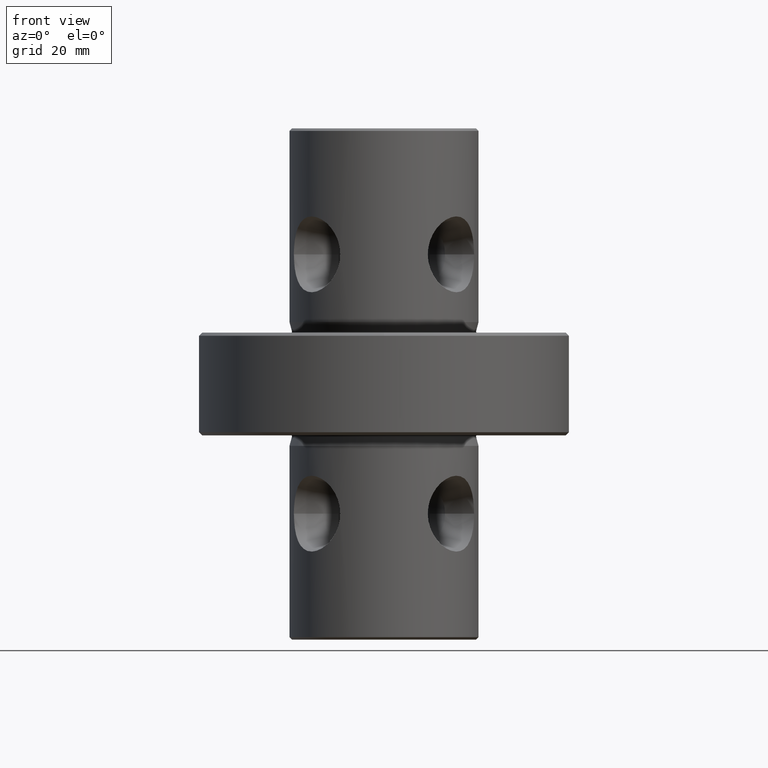
[diagram: clean part render]
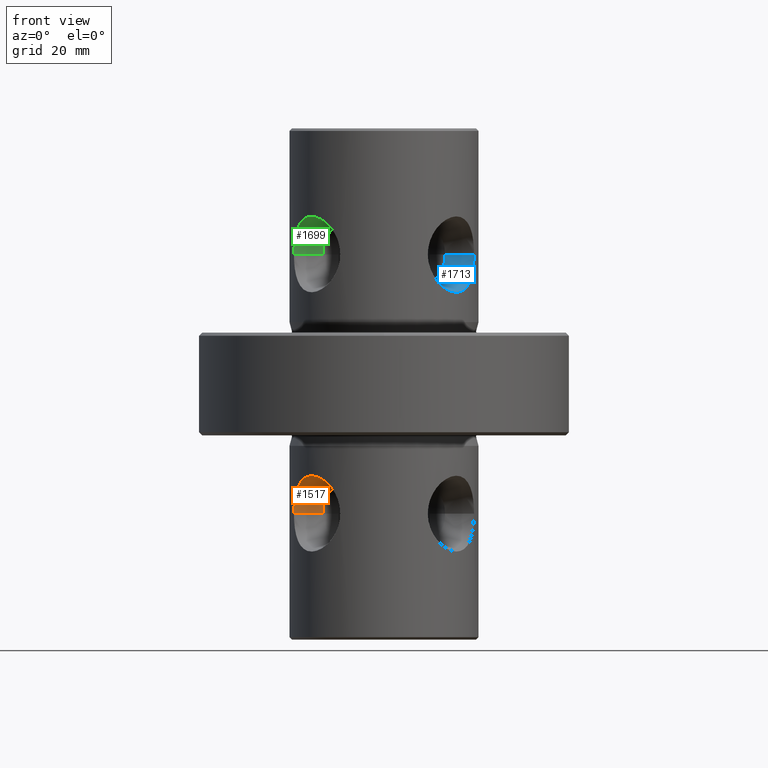
[diagram: same view with three faces highlighted in distinct colors, each labeled with its STEP entity id]
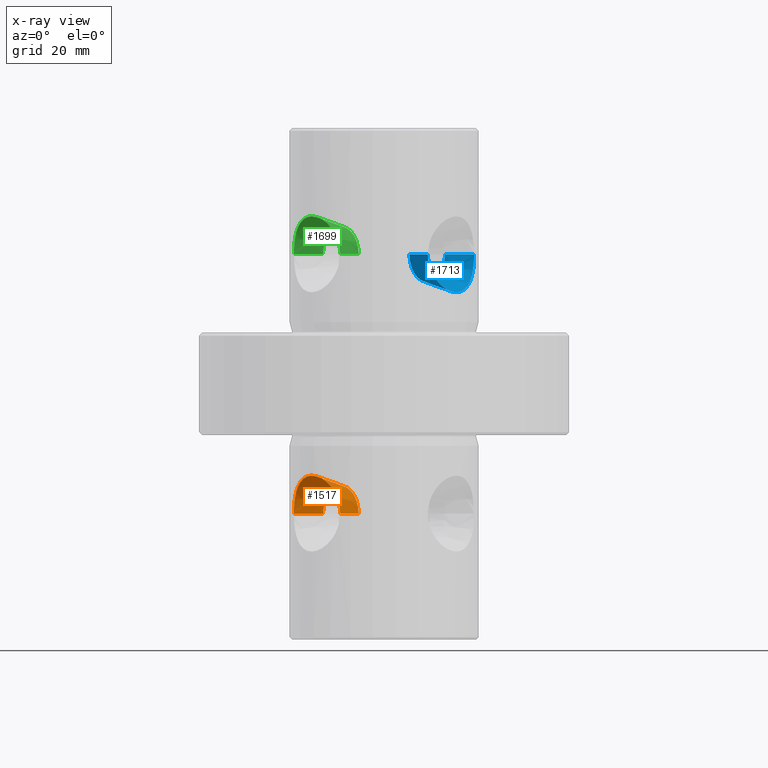
[diagram: x-ray of the same camera — body ghosted, the three highlighted faces saturated]
A machine part, front view with three faces highlighted in distinct colors.
The next image is the same camera in x-ray (body ghosted, the three faces saturated) — at least one of them is partly hidden behind the body in this view.
Their STEP definitions:

[orange] entity #1517 — the highlighted conical surface has half-angle 15 deg.
#1517=ADVANCED_FACE('NONE',(#3910),#3911,.F.);
#1829=VERTEX_POINT('NONE',#4246);
#2105=EDGE_CURVE('NONE',#2397,#1829,#4549,.T.);
#2397=VERTEX_POINT('NONE',#4881);
#2521=VERTEX_POINT('NONE',#5013);
#2657=EDGE_CURVE('NONE',#2521,#3419,#5161,.T.);
#2741=EDGE_CURVE('NONE',#2397,#2521,#5257,.T.);
#3265=EDGE_CURVE('NONE',#3419,#1829,#5851,.T.);
#3419=VERTEX_POINT('NONE',#6022);
#3910=FACE_OUTER_BOUND('',#7745,.T.);
#3911=CONICAL_SURFACE('',#7746,6.75,0.26179938779915);
#4246=CARTESIAN_POINT('',(-21.9248945438115,-6.94974814239657,-93.75));
#4549=LINE('',#10525,#10526);
#4881=CARTESIAN_POINT('',(-14.8541318378612,-3.65259734361518,-93.75));
#5013=CARTESIAN_POINT('',(-6.17649910709292,-13.9941973257214,-93.75));
#5161=LINE('',#12530,#12531);
#5257=CIRCLE('',#13072,6.75);
#5851=B_SPLINE_CURVE_WITH_KNOTS('',3,(#14894,#14895,#14896,#14897,#14898,#14899,#14900,#14901,#14902,#14903,#14904,#14905,#14906,#14907,#14908,#14909,#14910,#14911,#14912,#14913,#14914,#14915,#14916,#14917,#14918,#14919,#14920,#14921,#14922,#14923,#14924,#14925,#14926,#14927,#14928,#14929,#14930,#14931,#14932,#14933,#14934,#14935,#14936,#14937,#14938,#14939,#14940),.UNSPECIFIED.,.F.,.F.,(4,2,2,2,2,2,2,2,2,2,2,1,2,2,2,2,2,2,2,2,2,2,2,4),(0.0440413282775524,0.0458177088277653,0.0467058991028718,0.0475940893779783,0.0493704699281913,0.0511468504784042,0.0529232310286172,0.0538114213037237,0.0546996115788302,0.0564759921290432,0.0573641824041497,0.0582523726792562,0.0591405629543627,0.0600287532294692,0.0618051337796821,0.0626933240547886,0.0635815143298951,0.0644697046050016,0.0653578948801081,0.0671342754303211,0.068910655980534,0.070687036530747,0.0715752268058535,0.07246341708096),.UNSPECIFIED.);
#6022=CARTESIAN_POINT('',(-10.6513838351868,-20.3849950305494,-93.75));
#7745=EDGE_LOOP('',(#16107,#16108,#16109,#16110));
#7746=AXIS2_PLACEMENT_3D('',#16111,#16112,#16113);
#10525=CARTESIAN_POINT('',(-14.8541318378612,-3.65259734361518,-93.75));
#10526=VECTOR('',#16579,1000.0);
#12530=CARTESIAN_POINT('',(-6.17649910709292,-13.9941973257214,-93.75));
#12531=VECTOR('',#17163,1000.0);
#13072=AXIS2_PLACEMENT_3D('',#17258,#17259,#17260);
#14894=CARTESIAN_POINT('',(-10.6513838351868,-20.3849950305494,-93.75));
#14895=CARTESIAN_POINT('',(-10.6513838351868,-20.3849950305494,-93.1501892659733));
#14896=CARTESIAN_POINT('',(-10.7043967337572,-20.3575382698098,-92.5584162587969));
#14897=CARTESIAN_POINT('',(-10.8580951153181,-20.2757278273017,-91.687661042613));
#14898=CARTESIAN_POINT('',(-10.9217515420961,-20.2416113327971,-91.3999292932252));
#14899=CARTESIAN_POINT('',(-11.0737315129261,-20.1588679363432,-90.8295463512898));
#14900=CARTESIAN_POINT('',(-11.1625564338296,-20.1099542104055,-90.5457851760545));
#14901=CARTESIAN_POINT('',(-11.4599333705069,-19.9429592858151,-89.7189345926646));
#14902=CARTESIAN_POINT('',(-11.699971597739,-19.8044540380584,-89.1953255849322));
#14903=CARTESIAN_POINT('',(-12.2551663143087,-19.4657810976621,-88.2014016134274));
#14904=CARTESIAN_POINT('',(-12.5733242686259,-19.2634526033198,-87.7285629734536));
#14905=CARTESIAN_POINT('',(-13.2538709284699,-18.801701911684,-86.8742223020156));
#14906=CARTESIAN_POINT('',(-13.6183501600879,-18.5412293889585,-86.4877701414694));
#14907=CARTESIAN_POINT('',(-14.1971917696331,-18.0969308983719,-85.9713062122383));
#14908=CARTESIAN_POINT('',(-14.396553042897,-17.9389586514174,-85.8091556356362));
#14909=CARTESIAN_POINT('',(-14.7965601668547,-17.6104737086446,-85.5140418300655));
#14910=CARTESIAN_POINT('',(-14.9980230851255,-17.4393842210896,-85.3802043217393));
#14911=CARTESIAN_POINT('',(-15.6055719782985,-16.9043602990805,-85.0196282302583));
#14912=CARTESIAN_POINT('',(-16.0147323859784,-16.5188835173125,-84.8333266418787));
#14913=CARTESIAN_POINT('',(-16.6315893687973,-15.8895099540851,-84.6423796158903));
#14914=CARTESIAN_POINT('',(-16.8355753358596,-15.6732578551542,-84.5944542485713));
#14915=CARTESIAN_POINT('',(-17.2333323042106,-15.2348241334191,-84.5310590036821));
#14916=CARTESIAN_POINT('',(-17.6225410603829,-14.7888120222543,-84.4995163774851));
#14917=CARTESIAN_POINT('',(-17.9946336425985,-14.3276353739041,-84.5308905389506));
#14918=CARTESIAN_POINT('',(-18.3581243387173,-13.858832782853,-84.5943145653371));
#14919=CARTESIAN_POINT('',(-18.5359629340563,-13.6199404552441,-84.6424295118152));
#14920=CARTESIAN_POINT('',(-19.0440012767127,-12.9098727709062,-84.8312763944613));
#14921=CARTESIAN_POINT('',(-19.3534289267631,-12.4395353082169,-85.0164144728386));
#14922=CARTESIAN_POINT('',(-19.7791891040612,-11.7412942584154,-85.380418150297));
#14923=CARTESIAN_POINT('',(-19.9148549177896,-11.5093634716627,-85.5167128324554));
#14924=CARTESIAN_POINT('',(-20.1686353946688,-11.0586183692343,-85.8120691733595));
#14925=CARTESIAN_POINT('',(-20.2875628093397,-10.8385137609186,-85.9717267324638));
#14926=CARTESIAN_POINT('',(-20.5111659423261,-10.4091621648856,-86.3142923272696));
#14927=CARTESIAN_POINT('',(-20.6158379234354,-10.1999146834457,-86.4972022287155));
#14928=CARTESIAN_POINT('',(-20.8122071214181,-9.79301115950164,-86.8863507379254));
#14929=CARTESIAN_POINT('',(-20.9041521962665,-9.59473982110367,-87.0934397036402));
#14930=CARTESIAN_POINT('',(-21.1574186338803,-9.0296224654255,-87.7380551253011));
#14931=CARTESIAN_POINT('',(-21.2981916385491,-8.68866098376022,-88.2015600984003));
#14932=CARTESIAN_POINT('',(-21.5353738721929,-8.0829121576293,-89.1958690043566));
#14933=CARTESIAN_POINT('',(-21.631729865726,-7.81786699687364,-89.7301839121269));
#14934=CARTESIAN_POINT('',(-21.7807567882508,-7.39252427088426,-90.8256137294668));
#14935=CARTESIAN_POINT('',(-21.8348046727397,-7.22876207031578,-91.3913472839122));
#14936=CARTESIAN_POINT('',(-21.8891283224751,-7.06183300026986,-92.2682561001215));
#14937=CARTESIAN_POINT('',(-21.9026962612973,-7.01945551432055,-92.5662141073027));
#14938=CARTESIAN_POINT('',(-21.9205171619351,-6.96360442482792,-93.1585097562879));
#14939=CARTESIAN_POINT('',(-21.9248945438115,-6.94974814239657,-93.4543875867931));
#14940=CARTESIAN_POINT('',(-21.9248945438115,-6.94974814239657,-93.75));
#16107=ORIENTED_EDGE('',*,*,#2741,.T.);
#16108=ORIENTED_EDGE('',*,*,#2657,.T.);
#16109=ORIENTED_EDGE('',*,*,#3265,.T.);
#16110=ORIENTED_EDGE('',*,*,#2105,.F.);
#16111=CARTESIAN_POINT('',(-10.5153154724771,-8.82339733466828,-93.75));
#16112=DIRECTION('',(-0.766044443118977,-0.64278760968654,-0.0));
#16113=DIRECTION('',(-0.64278760968654,0.766044443118977,0.0));
#16579=DIRECTION('',(-0.906307787036649,-0.4226182617407,0.0));
#17163=DIRECTION('',(-0.573576436351044,-0.819152044288993,-3.16951447122788E-017));
#17258=CARTESIAN_POINT('',(-10.5153154724771,-8.82339733466828,-93.75));
#17259=DIRECTION('',(0.766044443118977,0.64278760968654,0.0));
#17260=DIRECTION('',(-0.64278760968654,0.766044443118977,0.0));

[blue] entity #1713 — the highlighted conical surface has half-angle 15 deg.
#1277=EDGE_CURVE('NONE',#2413,#1779,#3647,.T.);
#1649=EDGE_CURVE('NONE',#2583,#2413,#4049,.T.);
#1713=ADVANCED_FACE('NONE',(#4119),#4120,.F.);
#1779=VERTEX_POINT('NONE',#4191);
#1861=EDGE_CURVE('NONE',#2583,#2175,#4279,.T.);
#2175=VERTEX_POINT('NONE',#4622);
#2413=VERTEX_POINT('NONE',#4897);
#2583=VERTEX_POINT('NONE',#5080);
#2815=EDGE_CURVE('NONE',#2175,#1779,#5346,.T.);
#3647=LINE('',#6599,#6600);
#4049=CIRCLE('',#8267,6.75);
#4119=FACE_OUTER_BOUND('',#8647,.T.);
#4120=CONICAL_SURFACE('',#8648,6.75,0.26179938779915);
#4191=CARTESIAN_POINT('',(21.9248945438115,-6.94974814239672,-30.65));
#4279=LINE('',#9318,#9319);
#4622=CARTESIAN_POINT('',(10.6513838351866,-20.3849950305494,-30.65));
#4897=CARTESIAN_POINT('',(14.8541318378612,-3.65259734361528,-30.65));
#5080=CARTESIAN_POINT('',(6.17649910709282,-13.9941973257214,-30.65));
#5346=B_SPLINE_CURVE_WITH_KNOTS('',3,(#13305,#13306,#13307,#13308,#13309,#13310,#13311,#13312,#13313,#13314,#13315,#13316,#13317,#13318,#13319,#13320,#13321,#13322,#13323,#13324,#13325,#13326,#13327,#13328,#13329,#13330,#13331,#13332,#13333,#13334,#13335,#13336,#13337,#13338,#13339,#13340,#13341,#13342,#13343,#13344,#13345,#13346,#13347,#13348),.UNSPECIFIED.,.F.,.F.,(4,2,2,2,2,2,2,2,2,2,2,2,2,2,2,2,2,2,2,2,2,4),(0.00582249101599476,0.00758842714864576,0.00935436328129675,0.0102373313476223,0.0111202994139478,0.0128862355465988,0.0146521716792498,0.0155351397455753,0.0164181078119008,0.0181840439445518,0.0199499800772028,0.0217159162098539,0.0234818523425049,0.0252477884751559,0.0270137246078069,0.0278966926741324,0.0287796607404579,0.0296626288067834,0.0305455968731089,0.03231153300576,0.0331945010720854,0.0340774691384109),.UNSPECIFIED.);
#6599=CARTESIAN_POINT('',(14.8541318378612,-3.65259734361528,-30.65));
#6600=VECTOR('',#15889,1000.0);
#8267=AXIS2_PLACEMENT_3D('',#16185,#16186,#16187);
#8647=EDGE_LOOP('',(#16236,#16237,#16238,#16239));
#8648=AXIS2_PLACEMENT_3D('',#16240,#16241,#16242);
#9318=CARTESIAN_POINT('',(6.17649910709282,-13.9941973257214,-30.65));
#9319=VECTOR('',#16355,1000.0);
#13305=CARTESIAN_POINT('',(10.6513838351866,-20.3849950305494,-30.65));
#13306=CARTESIAN_POINT('',(10.6513838351866,-20.3849950305494,-31.2424302492194));
#13307=CARTESIAN_POINT('',(10.7046614533567,-20.3574022814185,-31.8445207323126));
#13308=CARTESIAN_POINT('',(10.9105796122972,-20.2477864716666,-33.0082341350945));
#13309=CARTESIAN_POINT('',(11.0622585022081,-20.1662583265641,-33.5746180936553));
#13310=CARTESIAN_POINT('',(11.359187512644,-19.9995435840031,-34.4012997569281));
#13311=CARTESIAN_POINT('',(11.4703123814805,-19.9361806335004,-34.6739090935432));
#13312=CARTESIAN_POINT('',(11.710701937952,-19.7959294932253,-35.20066916443));
#13313=CARTESIAN_POINT('',(11.8403266504619,-19.7188476662026,-35.4560737122329));
#13314=CARTESIAN_POINT('',(12.2555615261672,-19.4655173465411,-36.1990401364312));
#13315=CARTESIAN_POINT('',(12.5678474297455,-19.267119890047,-36.6642983953448));
#13316=CARTESIAN_POINT('',(13.2556626484224,-18.8005347164921,-37.5282887203257));
#13317=CARTESIAN_POINT('',(13.6210079681561,-18.5391696543574,-37.9145385254326));
#13318=CARTESIAN_POINT('',(14.1949771433211,-18.0986405922101,-38.4267491075384));
#13319=CARTESIAN_POINT('',(14.3906737649783,-17.9436708954218,-38.5862024853334));
#13320=CARTESIAN_POINT('',(14.7903134935294,-17.6157158065282,-38.8816447749408));
#13321=CARTESIAN_POINT('',(14.9954083937046,-17.4416676105185,-39.0182004950114));
#13322=CARTESIAN_POINT('',(15.6080683550629,-16.902200150953,-39.3819398262879));
#13323=CARTESIAN_POINT('',(16.0161247520544,-16.5172262204009,-39.5666598872093));
#13324=CARTESIAN_POINT('',(16.8266504680969,-15.6907249072107,-39.8184406915801));
#13325=CARTESIAN_POINT('',(17.2327253469743,-15.244167613344,-39.8841906588016));
#13326=CARTESIAN_POINT('',(17.9951875490013,-14.3361324695415,-39.885311160027));
#13327=CARTESIAN_POINT('',(18.3564800678489,-13.8702645549063,-39.8232938802854));
#13328=CARTESIAN_POINT('',(19.0401369760376,-12.9157958809417,-39.5711334630298));
#13329=CARTESIAN_POINT('',(19.3508584863595,-12.4434296427609,-39.3850920428584));
#13330=CARTESIAN_POINT('',(19.9163490902059,-11.5166707146861,-38.9029990931867));
#13331=CARTESIAN_POINT('',(20.1731909181708,-11.0579320712105,-38.6029669683016));
#13332=CARTESIAN_POINT('',(20.6216527525724,-10.1972021292508,-37.9169614668246));
#13333=CARTESIAN_POINT('',(20.816019834769,-9.79110927977541,-37.5297742985527));
#13334=CARTESIAN_POINT('',(21.0709668435739,-9.22266132683567,-36.8825205852573));
#13335=CARTESIAN_POINT('',(21.1491818209756,-9.04137132604292,-36.6569863639228));
#13336=CARTESIAN_POINT('',(21.2920111470047,-8.699686687916,-36.1920829392851));
#13337=CARTESIAN_POINT('',(21.3569357384845,-8.53859621808719,-35.9519310952766));
#13338=CARTESIAN_POINT('',(21.4752825219063,-8.23641731079699,-35.4562849523119));
#13339=CARTESIAN_POINT('',(21.5287024826833,-8.09532792484614,-35.2007906883533));
#13340=CARTESIAN_POINT('',(21.6250814962666,-7.83423353484657,-34.6740445044034));
#13341=CARTESIAN_POINT('',(21.6682037592907,-7.71374429661444,-34.40134914223));
#13342=CARTESIAN_POINT('',(21.7809139417854,-7.39211801659788,-33.5739518737954));
#13343=CARTESIAN_POINT('',(21.8347944302286,-7.22878395991261,-33.0077845132198));
#13344=CARTESIAN_POINT('',(21.8888622460157,-7.06265537261349,-32.1365518754621));
#13345=CARTESIAN_POINT('',(21.9023637532852,-7.02049466234318,-31.8424546140615));
#13346=CARTESIAN_POINT('',(21.9204340512599,-6.96386776795584,-31.2465806476545));
#13347=CARTESIAN_POINT('',(21.9248945438115,-6.94974814239672,-30.9469916128492));
#13348=CARTESIAN_POINT('',(21.9248945438115,-6.94974814239672,-30.65));
#15889=DIRECTION('',(0.906307787036647,-0.422618261740706,-3.16951447122788E-017));
#16185=CARTESIAN_POINT('',(10.515315472477,-8.82339733466835,-30.65));
#16186=DIRECTION('',(0.766044443118973,-0.642787609686546,-0.0));
#16187=DIRECTION('',(-0.642787609686546,-0.766044443118973,0.0));
#16236=ORIENTED_EDGE('',*,*,#1277,.F.);
#16237=ORIENTED_EDGE('',*,*,#1649,.F.);
#16238=ORIENTED_EDGE('',*,*,#1861,.T.);
#16239=ORIENTED_EDGE('',*,*,#2815,.T.);
#16240=CARTESIAN_POINT('',(10.515315472477,-8.82339733466835,-30.65));
#16241=DIRECTION('',(0.766044443118973,-0.642787609686546,-0.0));
#16242=DIRECTION('',(-0.642787609686546,-0.766044443118973,0.0));
#16355=DIRECTION('',(0.573576436351039,-0.819152044288997,-0.0));

[green] entity #1699 — the highlighted conical surface has half-angle 15 deg.
#1229=VERTEX_POINT('NONE',#3590);
#1699=ADVANCED_FACE('NONE',(#4103),#4104,.F.);
#2465=EDGE_CURVE('NONE',#3159,#3467,#4953,.T.);
#2959=VERTEX_POINT('NONE',#5514);
#3159=VERTEX_POINT('NONE',#5734);
#3229=EDGE_CURVE('NONE',#3467,#1229,#5810,.T.);
#3449=EDGE_CURVE('NONE',#2959,#1229,#6053,.T.);
#3459=EDGE_CURVE('NONE',#3159,#2959,#6072,.T.);
#3467=VERTEX_POINT('NONE',#6083);
#3590=CARTESIAN_POINT('',(-21.9248945438115,-6.94974814239657,-30.65));
#4103=FACE_OUTER_BOUND('',#8588,.T.);
#4104=CONICAL_SURFACE('',#8589,6.75,0.26179938779915);
#4953=LINE('',#11816,#11817);
#5514=CARTESIAN_POINT('',(-14.8541318378612,-3.65259734361518,-30.65));
#5734=CARTESIAN_POINT('',(-6.17649910709292,-13.9941973257214,-30.65));
#5810=B_SPLINE_CURVE_WITH_KNOTS('',3,(#14706,#14707,#14708,#14709,#14710,#14711,#14712,#14713,#14714,#14715,#14716,#14717,#14718,#14719,#14720,#14721,#14722,#14723,#14724,#14725,#14726,#14727,#14728,#14729,#14730,#14731,#14732,#14733,#14734,#14735,#14736,#14737,#14738,#14739,#14740,#14741,#14742,#14743,#14744,#14745,#14746,#14747,#14748,#14749,#14750,#14751,#14752),.UNSPECIFIED.,.F.,.F.,(4,2,2,2,2,2,2,2,2,2,2,1,2,2,2,2,2,2,2,2,2,2,2,4),(0.0440413282775524,0.0458177088277654,0.0467058991028719,0.0475940893779783,0.0493704699281913,0.0511468504784043,0.0529232310286172,0.0538114213037237,0.0546996115788302,0.0564759921290432,0.0573641824041497,0.0582523726792561,0.0591405629543626,0.0600287532294691,0.0618051337796821,0.0626933240547886,0.063581514329895,0.0644697046050015,0.065357894880108,0.067134275430321,0.068910655980534,0.070687036530747,0.0715752268058535,0.07246341708096),.UNSPECIFIED.);
#6053=LINE('',#15448,#15449);
#6072=CIRCLE('',#15471,6.75);
#6083=CARTESIAN_POINT('',(-10.6513838351868,-20.3849950305494,-30.65));
#8588=EDGE_LOOP('',(#16220,#16221,#16222,#16223));
#8589=AXIS2_PLACEMENT_3D('',#16224,#16225,#16226);
#11816=CARTESIAN_POINT('',(-6.17649910709292,-13.9941973257214,-30.65));
#11817=VECTOR('',#16985,1000.0);
#14706=CARTESIAN_POINT('',(-10.6513838351868,-20.3849950305494,-30.65));
#14707=CARTESIAN_POINT('',(-10.6513838351868,-20.3849950305494,-30.0501892659733));
#14708=CARTESIAN_POINT('',(-10.7043967337572,-20.3575382698098,-29.4584162587968));
#14709=CARTESIAN_POINT('',(-10.8580951153181,-20.2757278273017,-28.587661042613));
#14710=CARTESIAN_POINT('',(-10.9217515420961,-20.2416113327971,-28.2999292932252));
#14711=CARTESIAN_POINT('',(-11.0737315129261,-20.1588679363432,-27.7295463512898));
#14712=CARTESIAN_POINT('',(-11.1625564338296,-20.1099542104055,-27.4457851760545));
#14713=CARTESIAN_POINT('',(-11.4599333705069,-19.9429592858151,-26.6189345926646));
#14714=CARTESIAN_POINT('',(-11.699971597739,-19.8044540380583,-26.0953255849322));
#14715=CARTESIAN_POINT('',(-12.2551663143087,-19.4657810976621,-25.1014016134273));
#14716=CARTESIAN_POINT('',(-12.5733242686258,-19.2634526033198,-24.6285629734536));
#14717=CARTESIAN_POINT('',(-13.2538709284699,-18.801701911684,-23.7742223020155));
#14718=CARTESIAN_POINT('',(-13.6183501600879,-18.5412293889585,-23.3877701414694));
#14719=CARTESIAN_POINT('',(-14.1971917696331,-18.0969308983719,-22.8713062122383));
#14720=CARTESIAN_POINT('',(-14.396553042897,-17.9389586514174,-22.7091556356362));
#14721=CARTESIAN_POINT('',(-14.7965601668547,-17.6104737086446,-22.4140418300654));
#14722=CARTESIAN_POINT('',(-14.9980230851255,-17.4393842210896,-22.2802043217393));
#14723=CARTESIAN_POINT('',(-15.6055719782985,-16.9043602990805,-21.9196282302583));
#14724=CARTESIAN_POINT('',(-16.0147323859784,-16.5188835173125,-21.7333266418787));
#14725=CARTESIAN_POINT('',(-16.6315893687973,-15.8895099540851,-21.5423796158903));
#14726=CARTESIAN_POINT('',(-16.8355753358596,-15.6732578551542,-21.4944542485713));
#14727=CARTESIAN_POINT('',(-17.2333323042106,-15.2348241334191,-21.4310590036821));
#14728=CARTESIAN_POINT('',(-17.6225410603829,-14.7888120222543,-21.3995163774851));
#14729=CARTESIAN_POINT('',(-17.9946336425985,-14.3276353739041,-21.4308905389506));
#14730=CARTESIAN_POINT('',(-18.3581243387173,-13.858832782853,-21.4943145653371));
#14731=CARTESIAN_POINT('',(-18.5359629340563,-13.6199404552441,-21.5424295118152));
#14732=CARTESIAN_POINT('',(-19.0440012767127,-12.9098727709062,-21.7312763944613));
#14733=CARTESIAN_POINT('',(-19.3534289267631,-12.4395353082169,-21.9164144728386));
#14734=CARTESIAN_POINT('',(-19.7791891040612,-11.7412942584154,-22.280418150297));
#14735=CARTESIAN_POINT('',(-19.9148549177896,-11.5093634716627,-22.4167128324554));
#14736=CARTESIAN_POINT('',(-20.1686353946688,-11.0586183692343,-22.7120691733596));
#14737=CARTESIAN_POINT('',(-20.2875628093397,-10.8385137609186,-22.8717267324637));
#14738=CARTESIAN_POINT('',(-20.5111659423261,-10.4091621648856,-23.2142923272696));
#14739=CARTESIAN_POINT('',(-20.6158379234354,-10.1999146834457,-23.3972022287155));
#14740=CARTESIAN_POINT('',(-20.8122071214181,-9.79301115950164,-23.7863507379254));
#14741=CARTESIAN_POINT('',(-20.9041521962665,-9.59473982110367,-23.9934397036402));
#14742=CARTESIAN_POINT('',(-21.1574186338803,-9.02962246542549,-24.6380551253011));
#14743=CARTESIAN_POINT('',(-21.2981916385491,-8.68866098376023,-25.1015600984003));
#14744=CARTESIAN_POINT('',(-21.5353738721929,-8.0829121576293,-26.0958690043566));
#14745=CARTESIAN_POINT('',(-21.631729865726,-7.81786699687365,-26.6301839121269));
#14746=CARTESIAN_POINT('',(-21.7807567882508,-7.39252427088427,-27.7256137294668));
#14747=CARTESIAN_POINT('',(-21.8348046727397,-7.22876207031578,-28.2913472839122));
#14748=CARTESIAN_POINT('',(-21.8891283224751,-7.06183300026986,-29.1682561001215));
#14749=CARTESIAN_POINT('',(-21.9026962612974,-7.01945551432055,-29.4662141073027));
#14750=CARTESIAN_POINT('',(-21.9205171619351,-6.96360442482792,-30.0585097562878));
#14751=CARTESIAN_POINT('',(-21.9248945438115,-6.94974814239657,-30.354387586793));
#14752=CARTESIAN_POINT('',(-21.9248945438115,-6.94974814239657,-30.65));
#15448=CARTESIAN_POINT('',(-14.8541318378612,-3.65259734361518,-30.65));
#15449=VECTOR('',#18001,1000.0);
#15471=AXIS2_PLACEMENT_3D('',#18068,#18069,#18070);
#16220=ORIENTED_EDGE('',*,*,#3459,.F.);
#16221=ORIENTED_EDGE('',*,*,#2465,.T.);
#16222=ORIENTED_EDGE('',*,*,#3229,.T.);
#16223=ORIENTED_EDGE('',*,*,#3449,.F.);
#16224=CARTESIAN_POINT('',(-10.5153154724771,-8.82339733466828,-30.65));
#16225=DIRECTION('',(-0.766044443118977,-0.64278760968654,-0.0));
#16226=DIRECTION('',(-0.64278760968654,0.766044443118977,0.0));
#16985=DIRECTION('',(-0.573576436351044,-0.819152044288993,-3.16951447122788E-017));
#18001=DIRECTION('',(-0.906307787036649,-0.4226182617407,0.0));
#18068=CARTESIAN_POINT('',(-10.5153154724771,-8.82339733466828,-30.65));
#18069=DIRECTION('',(-0.766044443118977,-0.64278760968654,0.0));
#18070=DIRECTION('',(-0.64278760968654,0.766044443118977,0.0));